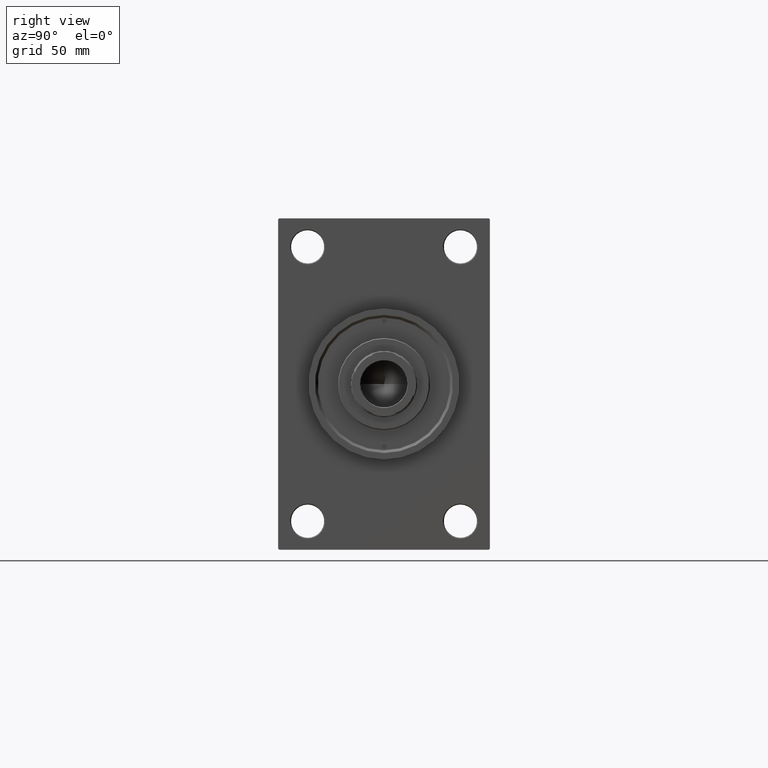
[diagram: clean part render]
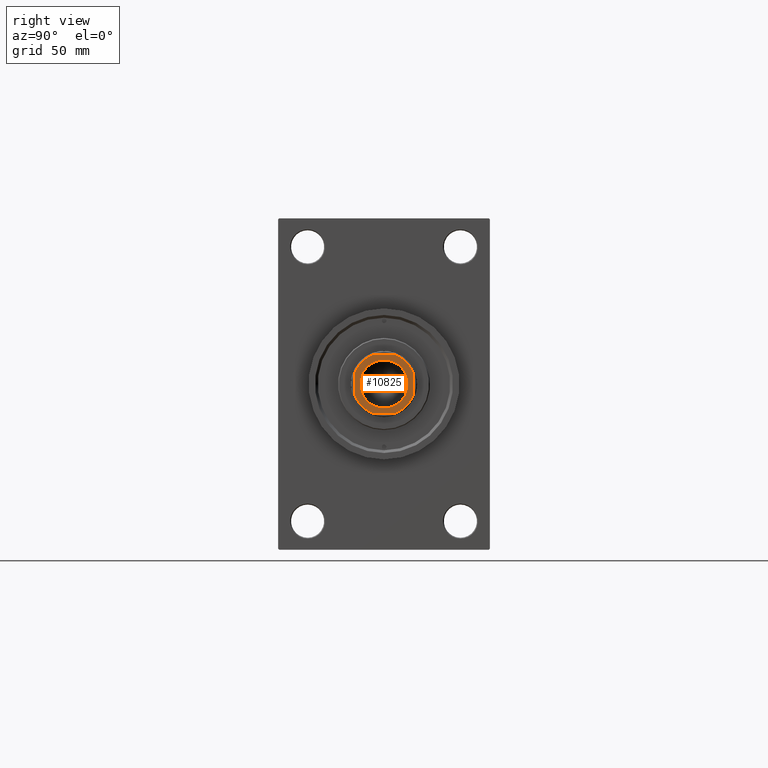
[diagram: same view with one face highlighted and labeled with its STEP entity id]
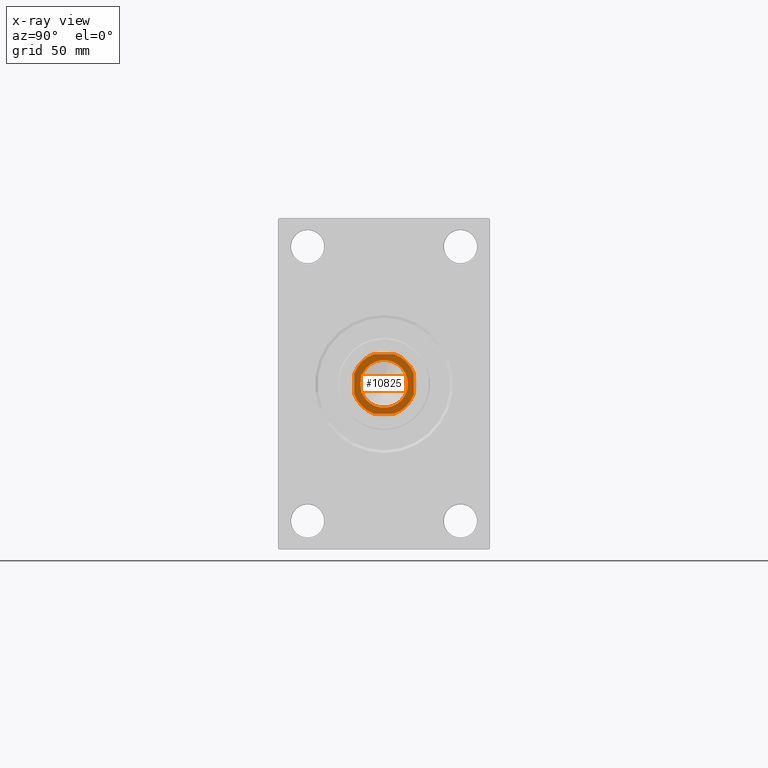
[diagram: x-ray of the same camera — body ghosted, the highlighted face saturated]
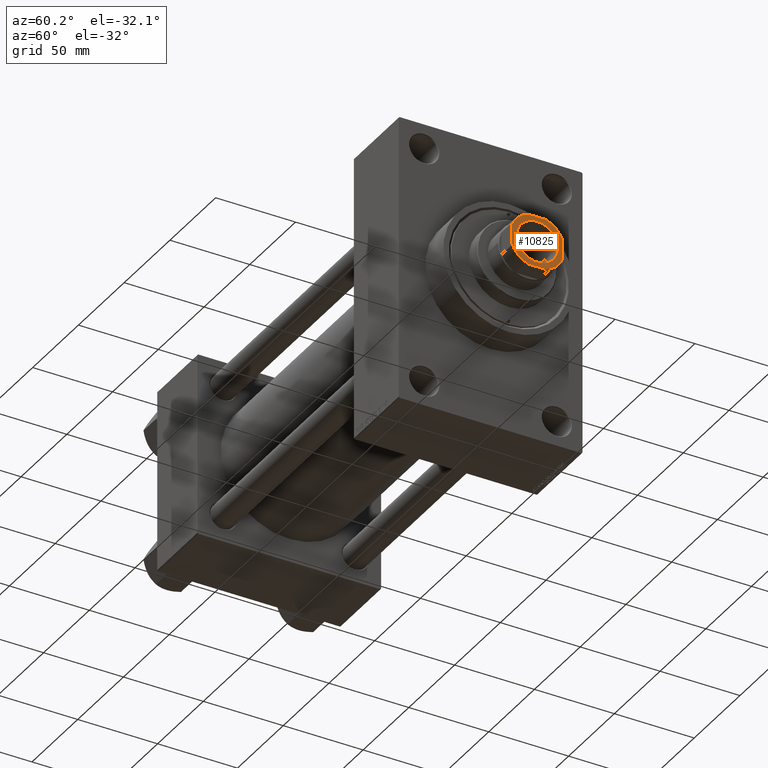
[diagram: same view with one face highlighted and labeled with its STEP entity id]
A machine part, right view. The second image highlights one B-rep face of the part: STEP entity #10825.
The next image is the same camera in x-ray: the body ghosted, the highlighted face saturated — about 0% of this face is hidden behind the body in this view.
A second angle (auxiliary view) of the same face is appended — the face is thin or edge-on in the first view.
In plain terms, the highlighted planar face has unit normal (1, 0, 0).
Its self-contained STEP definition (entity closure, byte-faithful):
#143 = DIRECTION ( 'NONE',  ( -1.084202172485504434E-16, 1.000000000000000000, -0.000000000000000000 ) ) ;
#1514 = CARTESIAN_POINT ( 'NONE',  ( 0.000000000000000000, 0.000000000000000000, 271.0000000000000000 ) ) ;
#2375 = VECTOR ( 'NONE', #11359, 1000.000000000000000 ) ;
#2643 = VERTEX_POINT ( 'NONE', #43319 ) ;
#2851 = EDGE_CURVE ( 'NONE', #23404, #44327, #40883, .T. ) ;
#4049 = AXIS2_PLACEMENT_3D ( 'NONE', #47340, #24809, #6904 ) ;
#4261 = LINE ( 'NONE', #26031, #8740 ) ;
#4576 = CARTESIAN_POINT ( 'NONE',  ( 0.000000000000000000, 0.000000000000000000, 271.0000000000000000 ) ) ;
#5589 = CARTESIAN_POINT ( 'NONE',  ( -16.00000000000000000, -5.744562646538198258, 271.0000000000000000 ) ) ;
#5878 = EDGE_LOOP ( 'NONE', ( #13646, #37182 ) ) ;
#6000 = EDGE_LOOP ( 'NONE', ( #24515, #32364, #35465, #15157, #18732, #10123, #16865, #46494 ) ) ;
#6004 = EDGE_CURVE ( 'NONE', #26537, #36953, #47885, .T. ) ;
#6476 = EDGE_CURVE ( 'NONE', #2643, #26537, #26450, .T. ) ;
#6904 = DIRECTION ( 'NONE',  ( 1.000000000000000000, 0.000000000000000000, 0.000000000000000000 ) ) ;
#7772 = DIRECTION ( 'NONE',  ( -0.000000000000000000, 0.000000000000000000, 1.000000000000000000 ) ) ;
#8740 = VECTOR ( 'NONE', #143, 1000.000000000000000 ) ;
#9647 = AXIS2_PLACEMENT_3D ( 'NONE', #4576, #30721, #26595 ) ;
#10123 = ORIENTED_EDGE ( 'NONE', *, *, #43678, .T. ) ;
#10385 = DIRECTION ( 'NONE',  ( 0.000000000000000000, -1.000000000000000000, 0.000000000000000000 ) ) ;
#10825 = ADVANCED_FACE ( 'NONE', ( #38561, #27403 ), #19430, .T. ) ;
#11346 = EDGE_CURVE ( 'NONE', #47278, #31227, #4261, .T. ) ;
#11359 = DIRECTION ( 'NONE',  ( 1.000000000000000000, 0.000000000000000000, 0.000000000000000000 ) ) ;
#11400 = CARTESIAN_POINT ( 'NONE',  ( -16.00000000000000000, 5.744562646538198258, 271.0000000000000000 ) ) ;
#12420 = DIRECTION ( 'NONE',  ( 1.000000000000000000, 0.000000000000000000, 0.000000000000000000 ) ) ;
#13531 = CARTESIAN_POINT ( 'NONE',  ( 16.00000000000000000, 5.744562646538086348, 271.0000000000000000 ) ) ;
#13646 = ORIENTED_EDGE ( 'NONE', *, *, #38009, .T. ) ;
#15157 = ORIENTED_EDGE ( 'NONE', *, *, #6476, .T. ) ;
#16073 = CIRCLE ( 'NONE', #23762, 17.00000000000005684 ) ;
#16865 = ORIENTED_EDGE ( 'NONE', *, *, #2851, .T. ) ;
#17334 = CARTESIAN_POINT ( 'NONE',  ( 5.744562646538085460, 16.00000000000000000, 271.0000000000000000 ) ) ;
#17920 = AXIS2_PLACEMENT_3D ( 'NONE', #25185, #36588, #32954 ) ;
#18706 = VECTOR ( 'NONE', #10385, 1000.000000000000000 ) ;
#18732 = ORIENTED_EDGE ( 'NONE', *, *, #6004, .T. ) ;
#18882 = CARTESIAN_POINT ( 'NONE',  ( -5.744562646538206252, -15.99999999999999645, 271.0000000000000000 ) ) ;
#19002 = CARTESIAN_POINT ( 'NONE',  ( 0.000000000000000000, 0.000000000000000000, 271.0000000000000000 ) ) ;
#19430 = PLANE ( 'NONE',  #32680 ) ;
#20954 = LINE ( 'NONE', #31394, #33324 ) ;
#22177 = CIRCLE ( 'NONE', #29118, 17.00000000000001776 ) ;
#23404 = VERTEX_POINT ( 'NONE', #18882 ) ;
#23762 = AXIS2_PLACEMENT_3D ( 'NONE', #19002, #29413, #29907 ) ;
#24515 = ORIENTED_EDGE ( 'NONE', *, *, #11346, .T. ) ;
#24809 = DIRECTION ( 'NONE',  ( 0.000000000000000000, -0.000000000000000000, -1.000000000000000000 ) ) ;
#25185 = CARTESIAN_POINT ( 'NONE',  ( 0.000000000000000000, 0.000000000000000000, 271.0000000000000000 ) ) ;
#25633 = EDGE_CURVE ( 'NONE', #39125, #2643, #20954, .T. ) ;
#25809 = CARTESIAN_POINT ( 'NONE',  ( 13.05000000000000604, 0.000000000000000000, 271.0000000000000000 ) ) ;
#25923 = DIRECTION ( 'NONE',  ( 1.000000000000000000, 0.000000000000000000, 0.000000000000000000 ) ) ;
#26031 = CARTESIAN_POINT ( 'NONE',  ( 15.99999999999999645, 16.00000000000000000, 271.0000000000000000 ) ) ;
#26392 = CARTESIAN_POINT ( 'NONE',  ( 0.000000000000000000, 0.000000000000000000, 271.0000000000000000 ) ) ;
#26450 = CIRCLE ( 'NONE', #42712, 17.00000000000005684 ) ;
#26537 = VERTEX_POINT ( 'NONE', #11400 ) ;
#26595 = DIRECTION ( 'NONE',  ( 1.000000000000000000, 0.000000000000000000, 0.000000000000000000 ) ) ;
#27114 = EDGE_CURVE ( 'NONE', #44327, #47278, #41146, .T. ) ;
#27403 = FACE_OUTER_BOUND ( 'NONE', #6000, .T. ) ;
#28863 = EDGE_CURVE ( 'NONE', #38163, #41124, #34198, .T. ) ;
#29118 = AXIS2_PLACEMENT_3D ( 'NONE', #35599, #36307, #39708 ) ;
#29413 = DIRECTION ( 'NONE',  ( -0.000000000000000000, 0.000000000000000000, 1.000000000000000000 ) ) ;
#29907 = DIRECTION ( 'NONE',  ( 1.000000000000000000, 0.000000000000000000, 0.000000000000000000 ) ) ;
#30525 = CIRCLE ( 'NONE', #9647, 13.05000000000000604 ) ;
#30721 = DIRECTION ( 'NONE',  ( 0.000000000000000000, -0.000000000000000000, -1.000000000000000000 ) ) ;
#31227 = VERTEX_POINT ( 'NONE', #13531 ) ;
#31394 = CARTESIAN_POINT ( 'NONE',  ( -16.00000000000000000, 16.00000000000000000, 271.0000000000000000 ) ) ;
#31457 = CARTESIAN_POINT ( 'NONE',  ( 5.744562646538206252, -15.99999999999999645, 271.0000000000000000 ) ) ;
#32364 = ORIENTED_EDGE ( 'NONE', *, *, #41991, .T. ) ;
#32680 = AXIS2_PLACEMENT_3D ( 'NONE', #1514, #34214, #12420 ) ;
#32954 = DIRECTION ( 'NONE',  ( 1.000000000000000000, 0.000000000000000000, 0.000000000000000000 ) ) ;
#33324 = VECTOR ( 'NONE', #42768, 1000.000000000000000 ) ;
#34198 = CIRCLE ( 'NONE', #4049, 13.05000000000000604 ) ;
#34214 = DIRECTION ( 'NONE',  ( -0.000000000000000000, 0.000000000000000000, 1.000000000000000000 ) ) ;
#34575 = CARTESIAN_POINT ( 'NONE',  ( 16.00000000000000000, -5.744562646538200035, 271.0000000000000000 ) ) ;
#35465 = ORIENTED_EDGE ( 'NONE', *, *, #25633, .T. ) ;
#35599 = CARTESIAN_POINT ( 'NONE',  ( 0.000000000000000000, 0.000000000000000000, 271.0000000000000000 ) ) ;
#36307 = DIRECTION ( 'NONE',  ( -0.000000000000000000, 0.000000000000000000, 1.000000000000000000 ) ) ;
#36588 = DIRECTION ( 'NONE',  ( -0.000000000000000000, 0.000000000000000000, 1.000000000000000000 ) ) ;
#36953 = VERTEX_POINT ( 'NONE', #5589 ) ;
#37182 = ORIENTED_EDGE ( 'NONE', *, *, #28863, .T. ) ;
#38009 = EDGE_CURVE ( 'NONE', #41124, #38163, #30525, .T. ) ;
#38163 = VERTEX_POINT ( 'NONE', #38700 ) ;
#38561 = FACE_BOUND ( 'NONE', #5878, .T. ) ;
#38700 = CARTESIAN_POINT ( 'NONE',  ( -13.05000000000000604, 1.598164072887296760E-15, 271.0000000000000000 ) ) ;
#39125 = VERTEX_POINT ( 'NONE', #17334 ) ;
#39708 = DIRECTION ( 'NONE',  ( 1.000000000000000000, 0.000000000000000000, 0.000000000000000000 ) ) ;
#39924 = CARTESIAN_POINT ( 'NONE',  ( -16.00000000000000000, 16.00000000000000000, 271.0000000000000000 ) ) ;
#40883 = LINE ( 'NONE', #41130, #2375 ) ;
#41124 = VERTEX_POINT ( 'NONE', #25809 ) ;
#41130 = CARTESIAN_POINT ( 'NONE',  ( -16.00000000000000000, -15.99999999999999645, 271.0000000000000000 ) ) ;
#41146 = CIRCLE ( 'NONE', #17920, 17.00000000000005684 ) ;
#41991 = EDGE_CURVE ( 'NONE', #31227, #39125, #22177, .T. ) ;
#42712 = AXIS2_PLACEMENT_3D ( 'NONE', #26392, #7772, #25923 ) ;
#42768 = DIRECTION ( 'NONE',  ( -1.000000000000000000, -0.000000000000000000, -0.000000000000000000 ) ) ;
#43319 = CARTESIAN_POINT ( 'NONE',  ( -5.744562646538198258, 16.00000000000000000, 271.0000000000000000 ) ) ;
#43678 = EDGE_CURVE ( 'NONE', #36953, #23404, #16073, .T. ) ;
#44327 = VERTEX_POINT ( 'NONE', #31457 ) ;
#46494 = ORIENTED_EDGE ( 'NONE', *, *, #27114, .T. ) ;
#47278 = VERTEX_POINT ( 'NONE', #34575 ) ;
#47340 = CARTESIAN_POINT ( 'NONE',  ( 0.000000000000000000, 0.000000000000000000, 271.0000000000000000 ) ) ;
#47885 = LINE ( 'NONE', #39924, #18706 ) ;